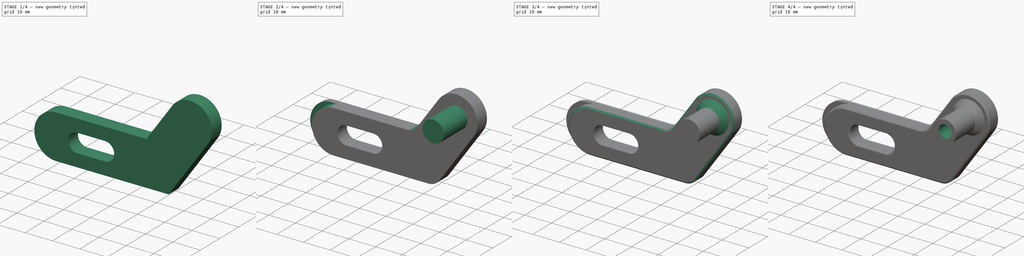
[diagram: build sequence overview — one tinted view per stage of 4, left to right]
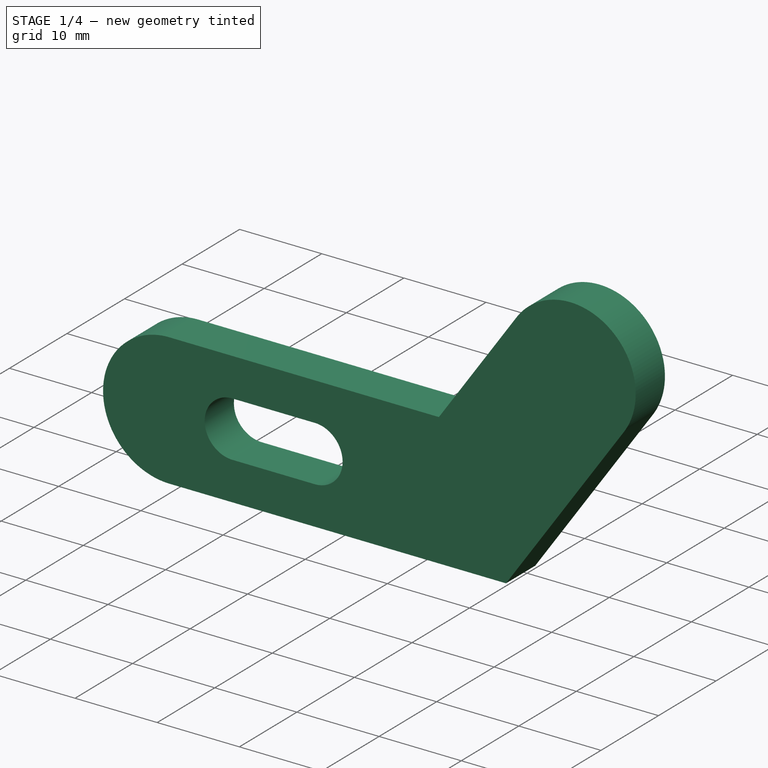
[diagram: stage 1 of 4 — iso view after this stage's code; geometry added in this stage tinted green]
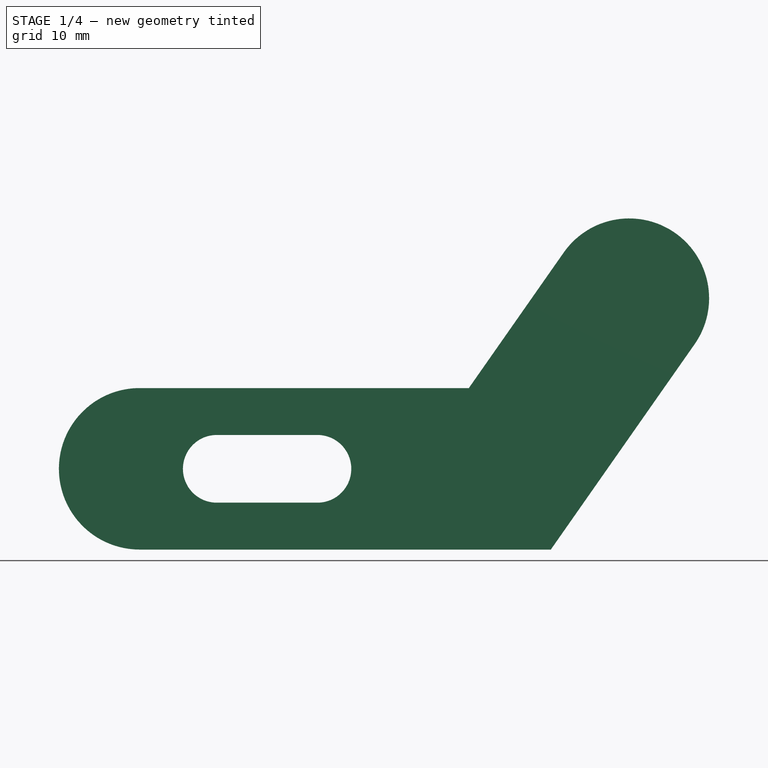
[diagram: stage 1 of 4 — front view after this stage's code; geometry added in this stage tinted green]
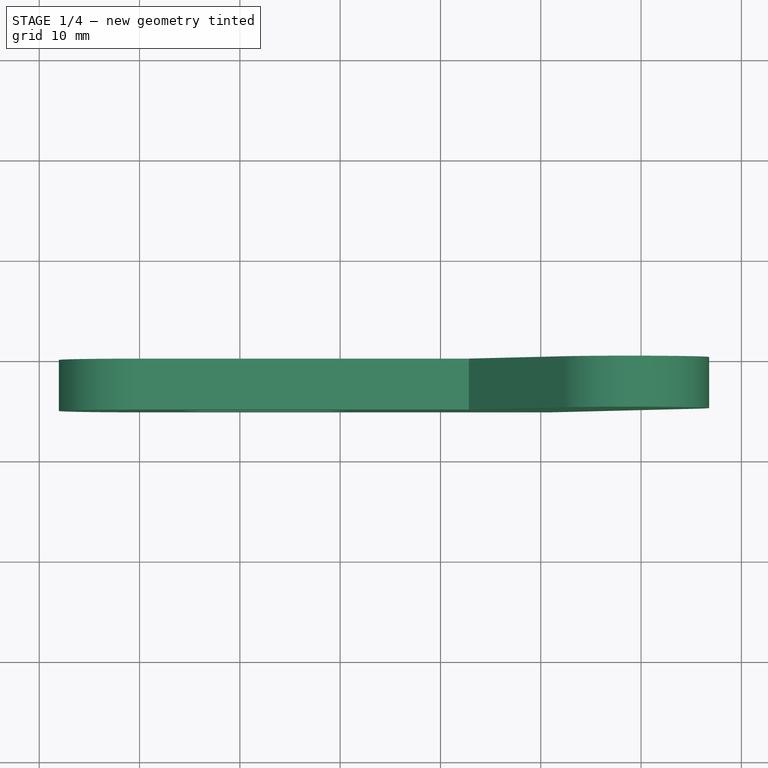
[diagram: stage 1 of 4 — top view after this stage's code; geometry added in this stage tinted green]
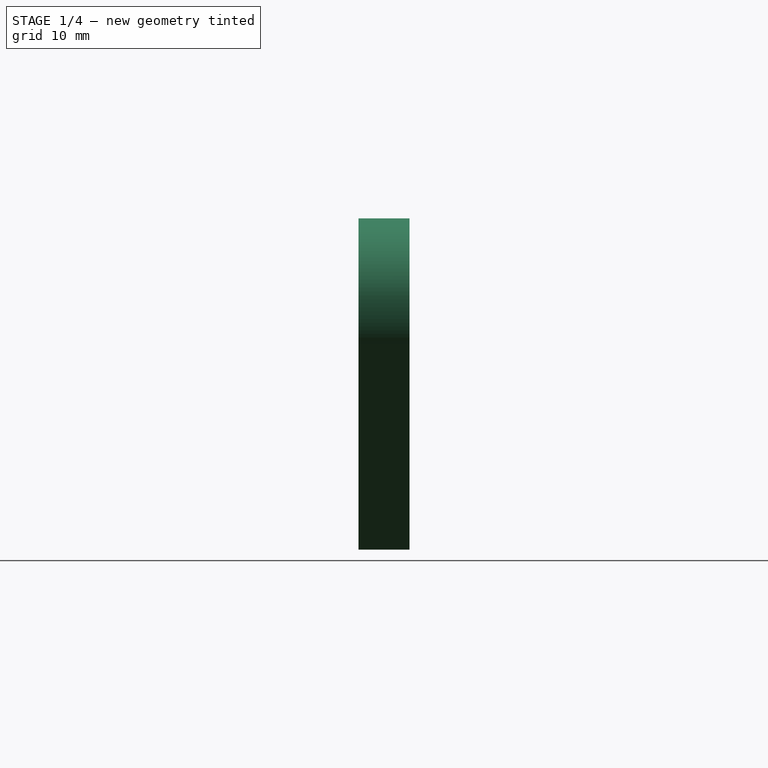
[diagram: stage 1 of 4 — right view after this stage's code; geometry added in this stage tinted green]
FCSTD DOCUMENT  (FreeCAD 0.19R21049 (Git))
Label: Halter
License: All rights reserved
LicenseURL: http://en.wikipedia.org/wiki/All_rights_reserved
objects: Sketcher::SketchObject×5, PartDesign::Pocket×3, PartDesign::Chamfer×3, PartDesign::Pad×2, PartDesign::Fillet×2, PartDesign::Body×1
note: 26 computed .brp shape members not serialized (recipe doc carries the construction recipe); baked Part::Feature solids carry a one-line shape summary decoded from their .brp

FEATURE [Sketcher::SketchObject] Sketch
  MapMode = 5
  Placement = pos=(0,0,0) rot=(1,0,0;1.5708rad)
  Support = -> [XZ_Plane]
  sketch-geometry (8):
    g0: LineSegment StartX=-1.4e-15 StartY=0 StartZ=0 EndX=41 EndY=0 EndZ=0
    g1: LineSegment StartX=41 StartY=0 StartZ=0 EndX=55.3394 EndY=20.4788 EndZ=0
    g2: LineSegment StartX=42.2901 StartY=29.616 StartZ=0 EndX=32.8261 EndY=16.1 EndZ=0
    g3: LineSegment StartX=32.8261 StartY=16.1 StartZ=0 EndX=-0.173917 EndY=16.1 EndZ=0
    g4: ArcOfCircle CenterX=0.0121804 CenterY=8.05107 CenterZ=0 NormalX=0 NormalY=0 NormalZ=1 AngleXU=0 Radius=8.05108 StartAngle=1.59391 EndAngle=4.71088
    g5: GeomPoint X=42.2901 Y=29.616 Z=0
    g6: GeomPoint X=42.2901 Y=29.616 Z=0
    g7: ArcOfCircle CenterX=48.8147 CenterY=25.0474 CenterZ=0 NormalX=0 NormalY=0 NormalZ=1 AngleXU=0 Radius=7.96513 StartAngle=5.67232 EndAngle=8.81391
  constraints (19):
    c: Coincident(g-1,g0)
    c: PointOnObject(g0,g-1)
    c: Coincident(g0,g1)
    c: Coincident(g2,g3)
    c: Horizontal(g3)
    c: Coincident(g4,g0)
    c: Coincident(g4,g3)
    c: Coincident(g5,g2)
    c: Parallel(g2,g1)
    c: DistanceY(g0,g3) = 16.1
    c: Distance(g0) = 41
    c: Distance(g3) = 33
    c: Angle(g1,g0) = 2.18166
    c: Distance(g1) = 25
    c: Distance(g2) = 16.5
    c: Coincident(g7,g2)
    c: Coincident(g7,g1)
    c: Tangent(g7,g2)
    c: Tangent(g7,g1)
FEATURE [PartDesign::Pad] Pad
  Length = 5.08
  Length2 = 100
  Placement = pos=(0,0,0) rot=(1,0,0;1.5708rad)
  Profile = -> Sketch
  Type = 0
FEATURE [Sketcher::SketchObject] Sketch001
  MapMode = 5
  Placement = pos=(0,-5.08,1.1e-15) rot=(1,0,0;1.5708rad)
  Support = -> [Pad]
  sketch-geometry (4):
    g0: LineSegment StartX=7.7 StartY=11.425 StartZ=0 EndX=17.7342 EndY=11.425 EndZ=0
    g1: LineSegment StartX=17.7342 StartY=4.675 StartZ=0 EndX=7.7 EndY=4.675 EndZ=0
    g2: ArcOfCircle CenterX=7.69999 CenterY=8.05 CenterZ=0 NormalX=0 NormalY=0 NormalZ=1 AngleXU=0 Radius=3.375 StartAngle=1.57079 EndAngle=4.71239
    g3: ArcOfCircle CenterX=17.7342 CenterY=8.05 CenterZ=0 NormalX=0 NormalY=0 NormalZ=1 AngleXU=0 Radius=3.375 StartAngle=4.71239 EndAngle=7.85398
  constraints (13):
    c: Horizontal(g0)
    c: Equal(g0,g1)
    c: Coincident(g2,g0)
    c: Coincident(g2,g1)
    c: DistanceY(g-1,g1) = 4.675
    c: Parallel(g1,g0)
    c: DistanceY(g1,g0) = 6.75
    c: Coincident(g3,g0)
    c: Coincident(g3,g1)
    c: Tangent(g3,g0)
    c: Tangent(g3,g1)
    c: DistanceX(g-1,g1) = 7.7
    c: Tangent(g2,g0)
FEATURE [PartDesign::Pocket] Pocket
  BaseFeature = -> Pad
  Length = 5
  Length2 = 100
  Placement = pos=(0,0,0) rot=(1,0,0;1.5708rad)
  Profile = -> Sketch001
  Type = 1
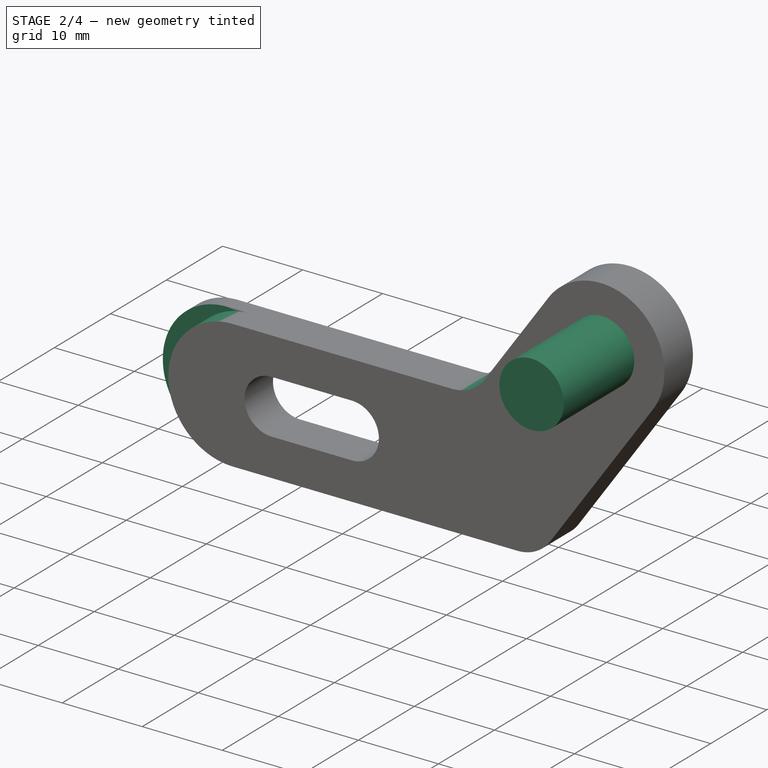
[diagram: stage 2 of 4 — iso view after this stage's code; geometry added in this stage tinted green]
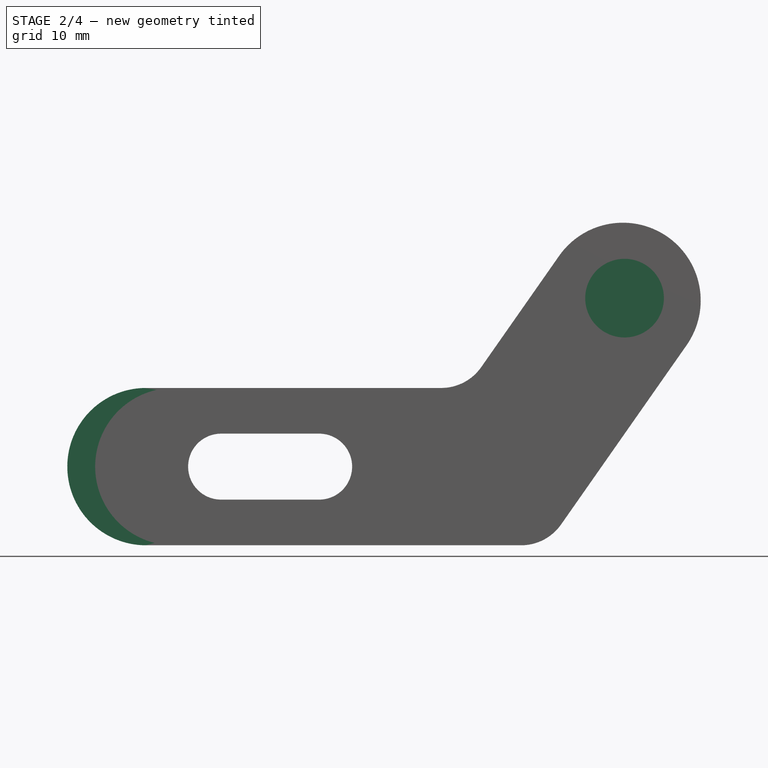
[diagram: stage 2 of 4 — front view after this stage's code; geometry added in this stage tinted green]
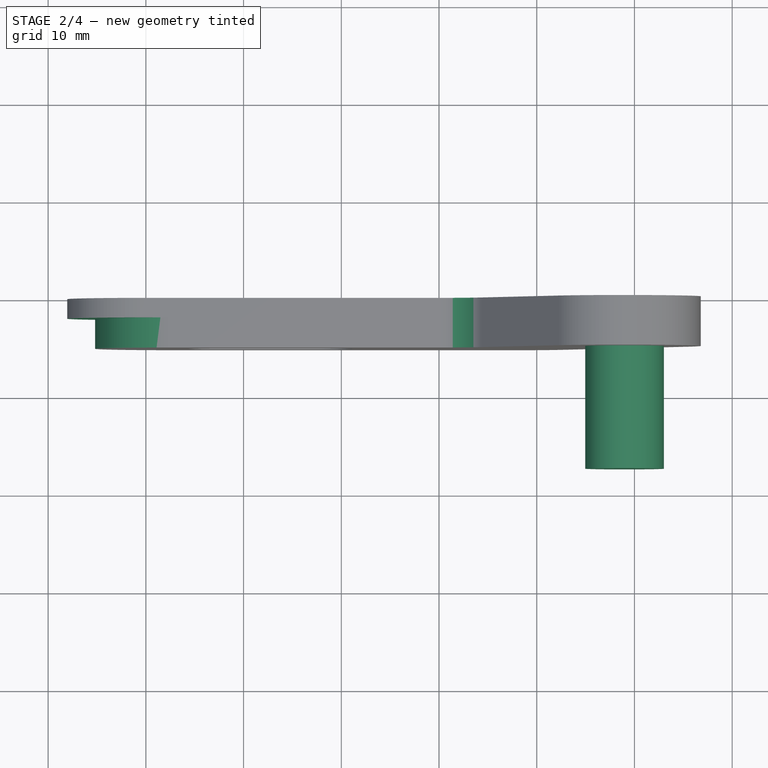
[diagram: stage 2 of 4 — top view after this stage's code; geometry added in this stage tinted green]
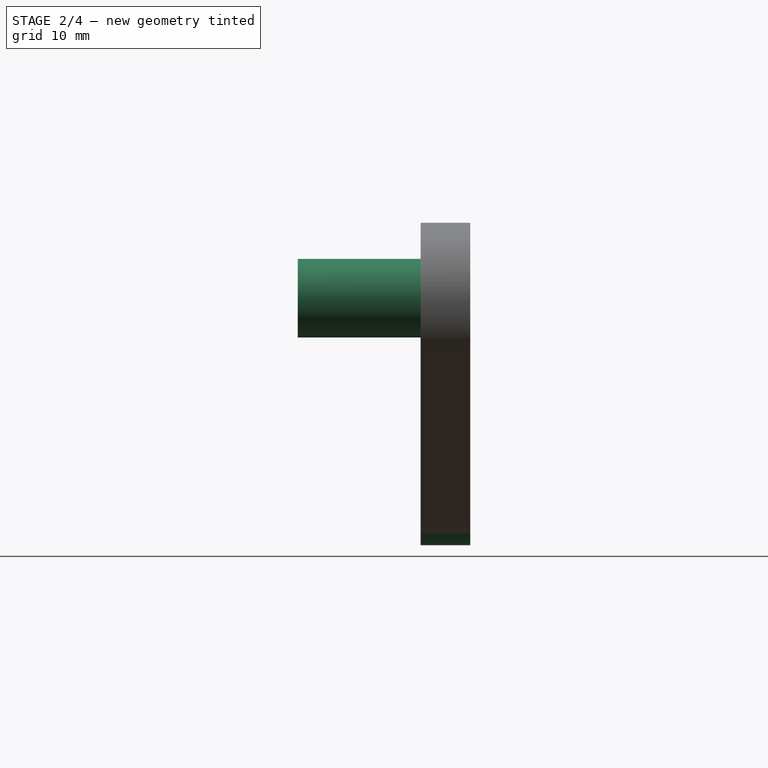
[diagram: stage 2 of 4 — right view after this stage's code; geometry added in this stage tinted green]
FEATURE [Sketcher::SketchObject] Sketch002
  ExternalGeometry = -> [Pocket]
  MapMode = 5
  Placement = pos=(0,-5.08,1.1e-15) rot=(1,0,0;1.5708rad)
  Support = -> [Pocket]
  sketch-geometry (2):
    g0: Circle CenterX=48.9868 CenterY=25.2931 CenterZ=0 NormalX=0 NormalY=0 NormalZ=1 AngleXU=0 Radius=4.025
    g1: LineSegment [constr] StartX=58.0473 StartY=38.2329 StartZ=0 EndX=38.1913 EndY=9.87557 EndZ=0
  constraints (5):
    c: Radius(g0) = 4.025
    c: Distance(g-3,g0) = 0.3
    c: Parallel(g1,g-4)
    c: PointOnObject(g-3,g1)
    c: PointOnObject(g0,g1)
FEATURE [PartDesign::Pad] Pad001
  BaseFeature = -> Pocket
  Length = 12.57
  Length2 = 100
  Placement = pos=(0,0,0) rot=(1,0,0;1.5708rad)
  Profile = -> Sketch002
  Type = 0
FEATURE [Sketcher::SketchObject] Sketch003
  ExternalGeometry = -> [Pad001]
  MapMode = 5
  Placement = pos=(0,-5.08,1.1e-15) rot=(1,0,0;1.5708rad)
  Support = -> [Pad001]
  sketch-geometry (8):
    g0: LineSegment [constr] StartX=-12.131 StartY=8.05107 StartZ=0 EndX=11.3902 EndY=8.05107 EndZ=0
    g1: ArcOfCircle CenterX=2.86217 CenterY=8.05107 CenterZ=0 NormalX=0 NormalY=0 NormalZ=1 AngleXU=0 Radius=8.05107 StartAngle=1.59389 EndAngle=4.71239
    g2: GeomPoint X=-5.1889 Y=8.05107 Z=0
    g3: GeomPoint X=-8.0389 Y=8.05107 Z=0
    g4: LineSegment StartX=2.67624 StartY=16.1 StartZ=0 EndX=2.67647 EndY=16.1 EndZ=0
    g5: LineSegment StartX=2.67647 StartY=16.1 StartZ=0 EndX=-15 EndY=16.1 EndZ=0
    g6: LineSegment StartX=-15 StartY=16.1 StartZ=0 EndX=-15 EndY=0 EndZ=0
    g7: LineSegment StartX=-15 StartY=0 StartZ=0 EndX=2.86217 EndY=6.04e-13 EndZ=0
  constraints (19):
    c: Horizontal(g0)
    c: PointOnObject(g-4,g0)
    c: PointOnObject(g1,g0)
    c: PointOnObject(g1,g-5)
    c: PointOnObject(g2,g1)
    c: PointOnObject(g2,g0)
    c: PointOnObject(g3,g-4)
    c: PointOnObject(g3,g0)
    c: DistanceX(g3,g2) = 2.85
    c: Tangent(g1,g4) = 1.5708
    c: PointOnObject(g4,g-3)
    c: Tangent(g1,g-5)
    c: Coincident(g5,g4)
    c: Parallel(g5,g0)
    c: Coincident(g5,g6)
    c: PointOnObject(g6,g-1)
    c: Vertical(g6)
    c: Coincident(g6,g7)
    c: Coincident(g7,g1)
FEATURE [PartDesign::Pocket] Pocket001
  BaseFeature = -> Pad001
  Length = 3.08
  Length2 = 100
  Placement = pos=(0,0,0) rot=(1,0,0;1.5708rad)
  Profile = -> Sketch003
  Type = 0
FEATURE [PartDesign::Fillet] Fillet
  Base = -> Pocket001 [Edge35,Edge2]
  BaseFeature = -> Pocket001
  Placement = pos=(0,0,0) rot=(1,0,0;1.5708rad)
  Radius = 5
  SupportTransform = true
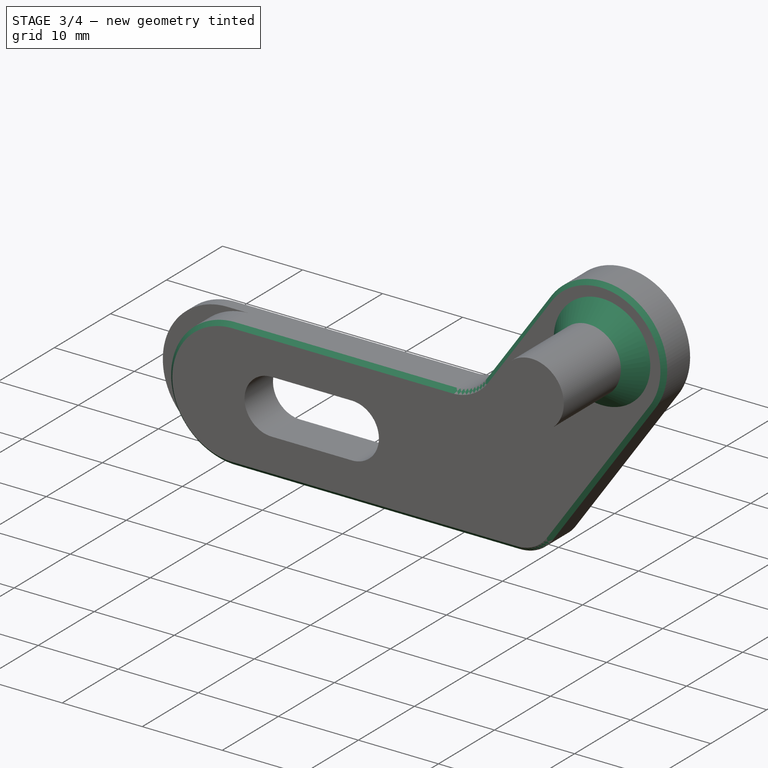
[diagram: stage 3 of 4 — iso view after this stage's code; geometry added in this stage tinted green]
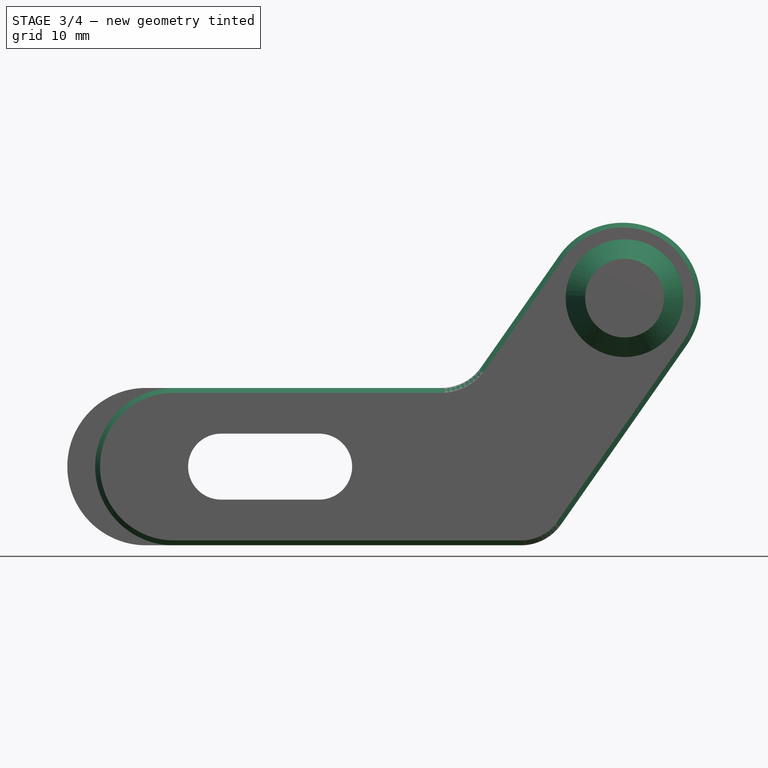
[diagram: stage 3 of 4 — front view after this stage's code; geometry added in this stage tinted green]
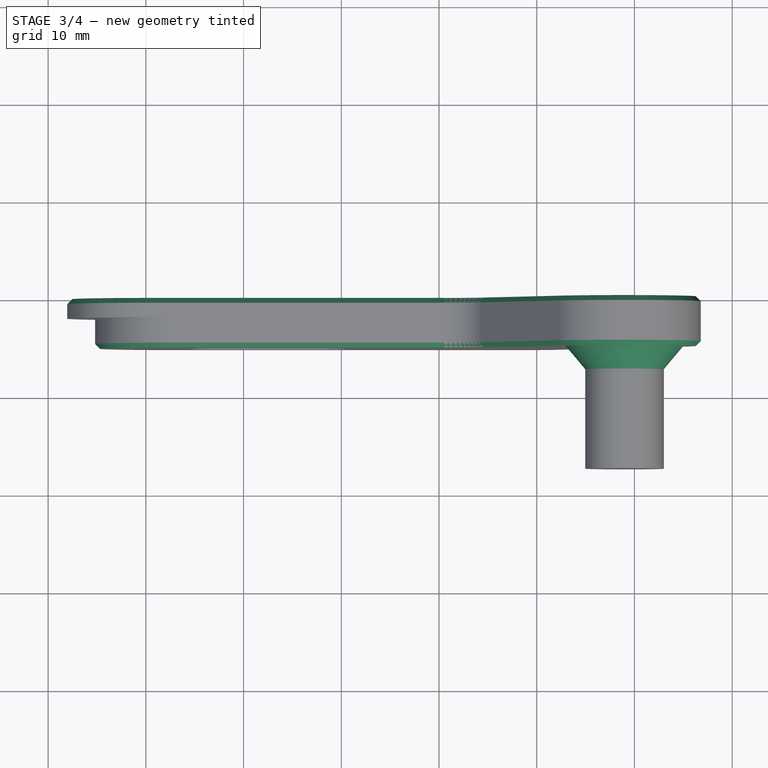
[diagram: stage 3 of 4 — top view after this stage's code; geometry added in this stage tinted green]
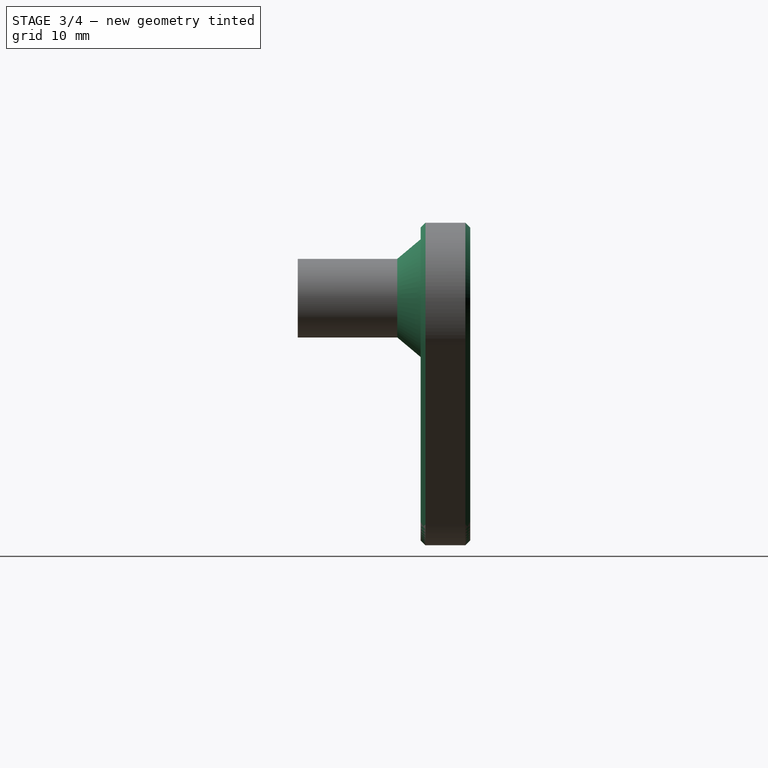
[diagram: stage 3 of 4 — right view after this stage's code; geometry added in this stage tinted green]
FEATURE [PartDesign::Chamfer] Chamfer
  Angle = 50
  Base = -> Fillet [Edge33]
  BaseFeature = -> Fillet
  Placement = pos=(0,0,0) rot=(1,0,0;1.5708rad)
  Size = 2
  SupportTransform = true
FEATURE [PartDesign::Chamfer] Chamfer001
  Angle = 45
  Base = -> Chamfer [Edge49]
  BaseFeature = -> Chamfer
  Placement = pos=(0,0,0) rot=(1,0,0;1.5708rad)
  Size = 0.5
  SupportTransform = true
FEATURE [PartDesign::Chamfer] Chamfer002
  Angle = 45
  Base = -> Chamfer001 [Edge16]
  BaseFeature = -> Chamfer001
  Placement = pos=(0,0,0) rot=(1,0,0;1.5708rad)
  Size = 0.5
  SupportTransform = true
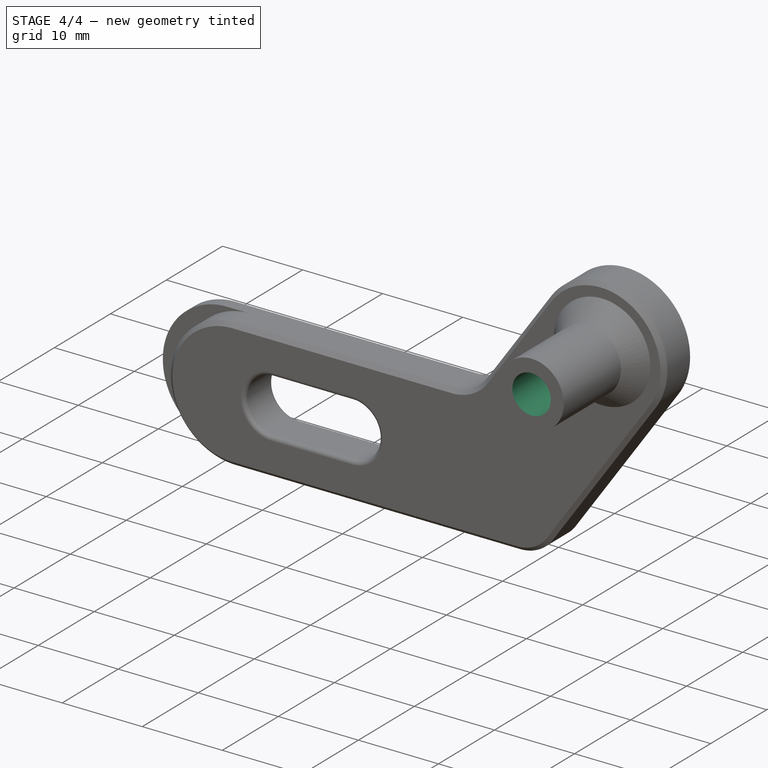
[diagram: stage 4 of 4 — iso view after this stage's code; geometry added in this stage tinted green]
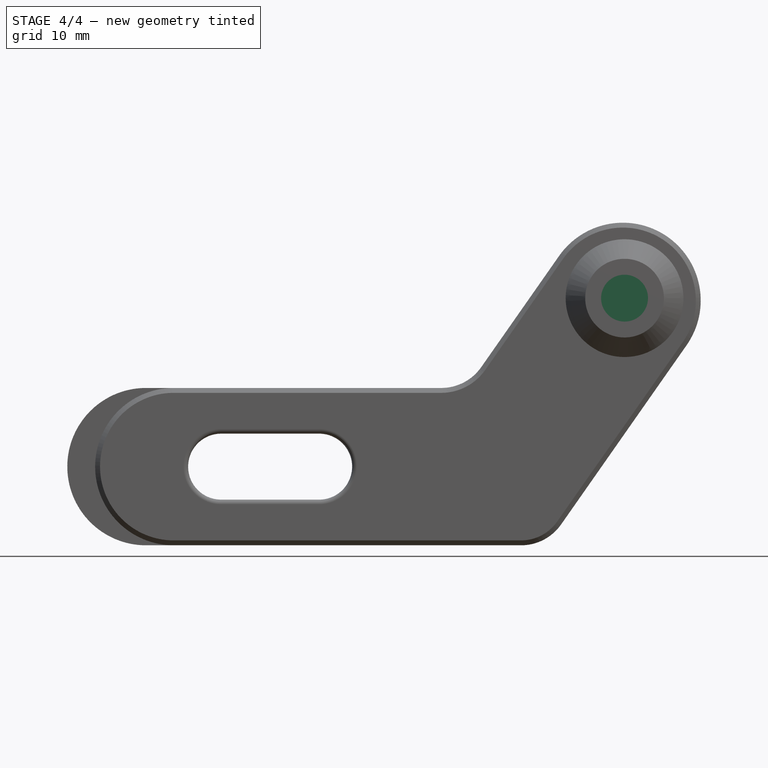
[diagram: stage 4 of 4 — front view after this stage's code; geometry added in this stage tinted green]
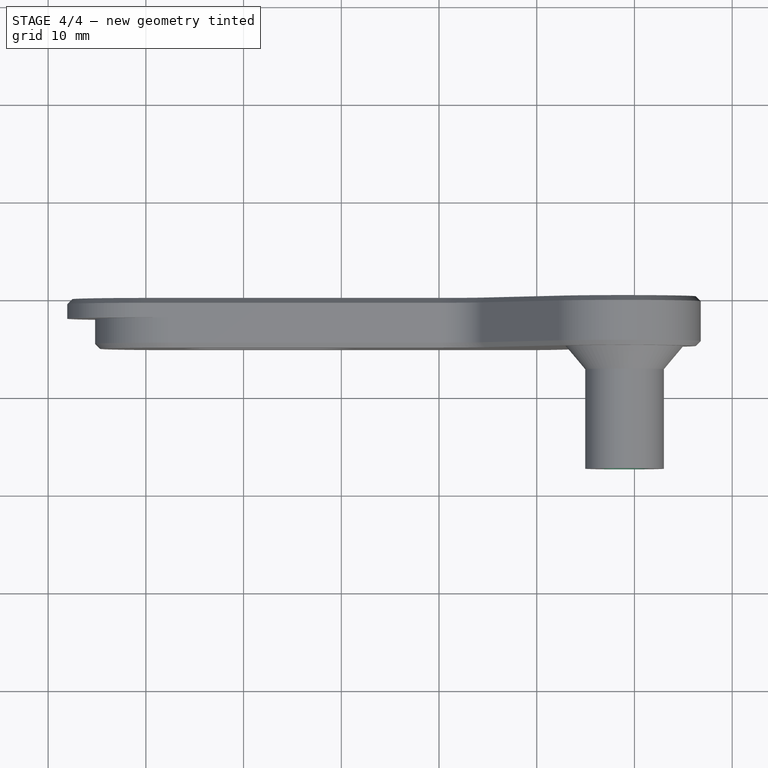
[diagram: stage 4 of 4 — top view after this stage's code; geometry added in this stage tinted green]
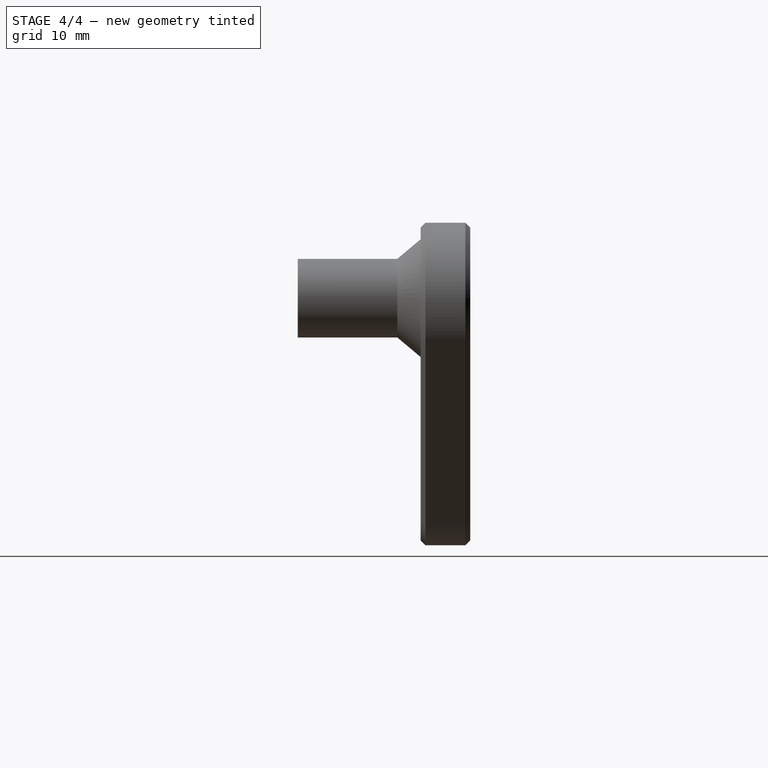
[diagram: stage 4 of 4 — right view after this stage's code; geometry added in this stage tinted green]
FEATURE [PartDesign::Fillet] Fillet001
  Base = -> Chamfer002 [Edge53,Edge40]
  BaseFeature = -> Chamfer002
  Placement = pos=(0,0,0) rot=(1,0,0;1.5708rad)
  Radius = 0.5
  SupportTransform = true
FEATURE [Sketcher::SketchObject] Sketch004
  ExternalGeometry = -> [Pocket001]
  MapMode = 5
  Placement = pos=(0,-17.65,4.4e-15) rot=(1,0,0;1.5708rad)
  Support = -> [Pocket001]
  sketch-geometry (1):
    g0: Circle CenterX=48.9868 CenterY=25.2931 CenterZ=0 NormalX=0 NormalY=0 NormalZ=1 AngleXU=0 Radius=2.4
  constraints (2):
    c: Coincident(g0,g-3)
    c: Diameter(g0) = 4.8
FEATURE [PartDesign::Pocket] Pocket002
  BaseFeature = -> Fillet001
  Length = 16
  Length2 = 100
  Placement = pos=(0,0,0) rot=(1,0,0;1.5708rad)
  Profile = -> Sketch004
  Type = 0
FEATURE [PartDesign::Body] Body
  Group = -> [Sketch,Pad,Sketch001,Pocket,Sketch002,Pad001,Sketch003,Pocket001,Fillet,Chamfer,Chamfer001,Chamfer002,Fillet001,Sketch004,Pocket002]
  Origin = -> Origin
  Tip = -> Pocket002
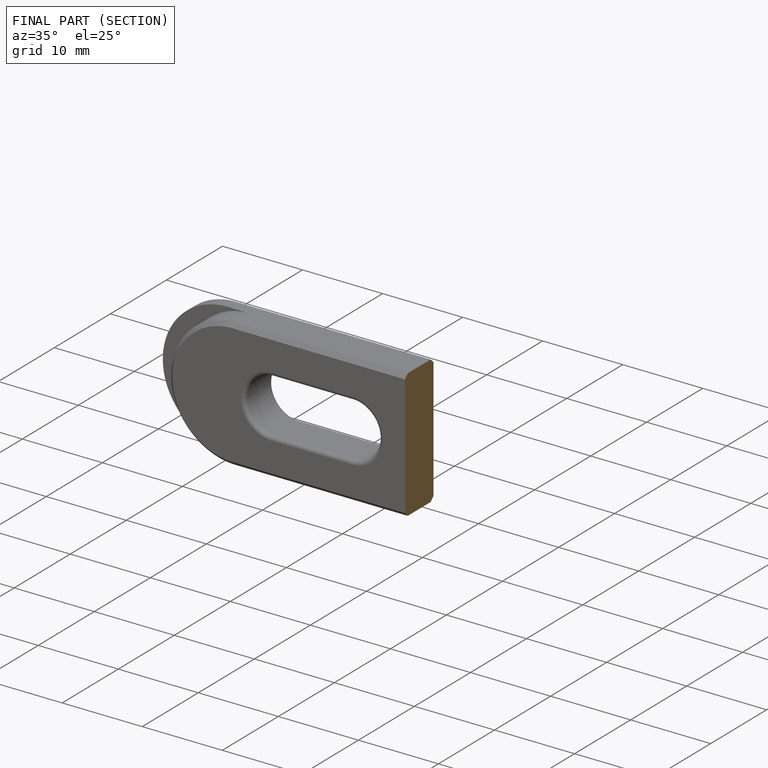
[diagram: finished part — half-section view (interior)]
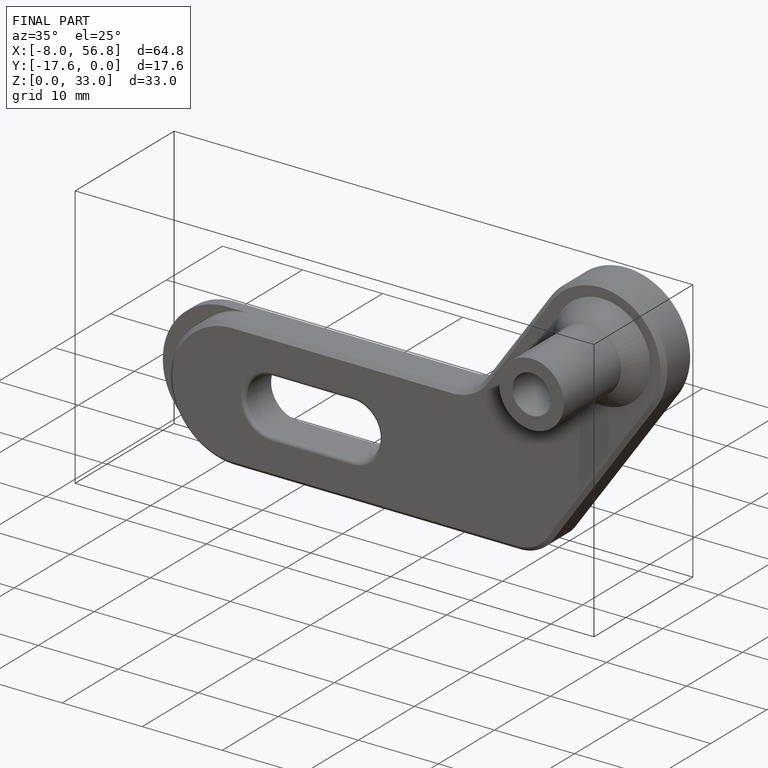
[diagram: finished part — iso view with bounding-box wireframe]
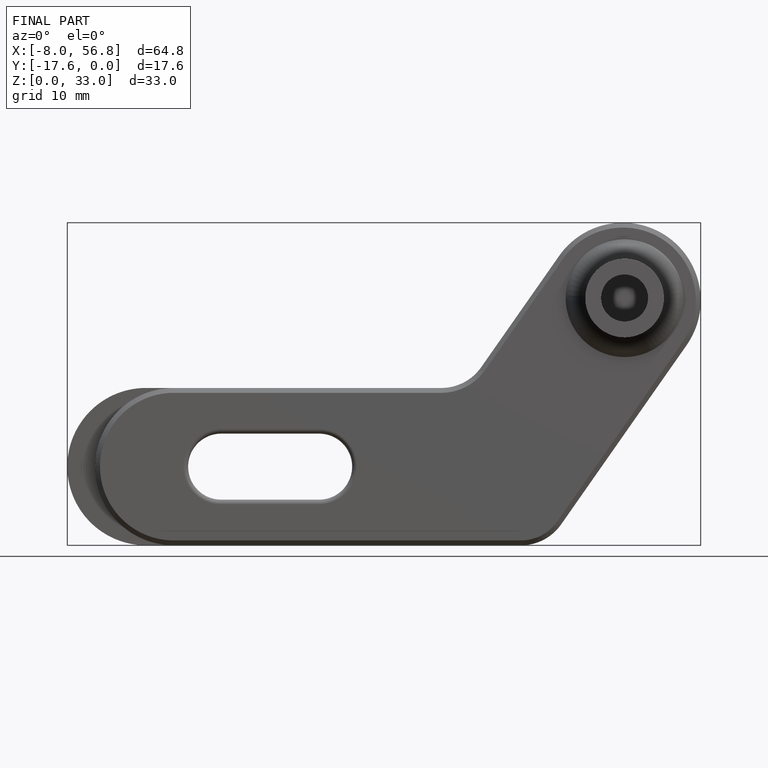
[diagram: finished part — front view with bounding-box wireframe]
